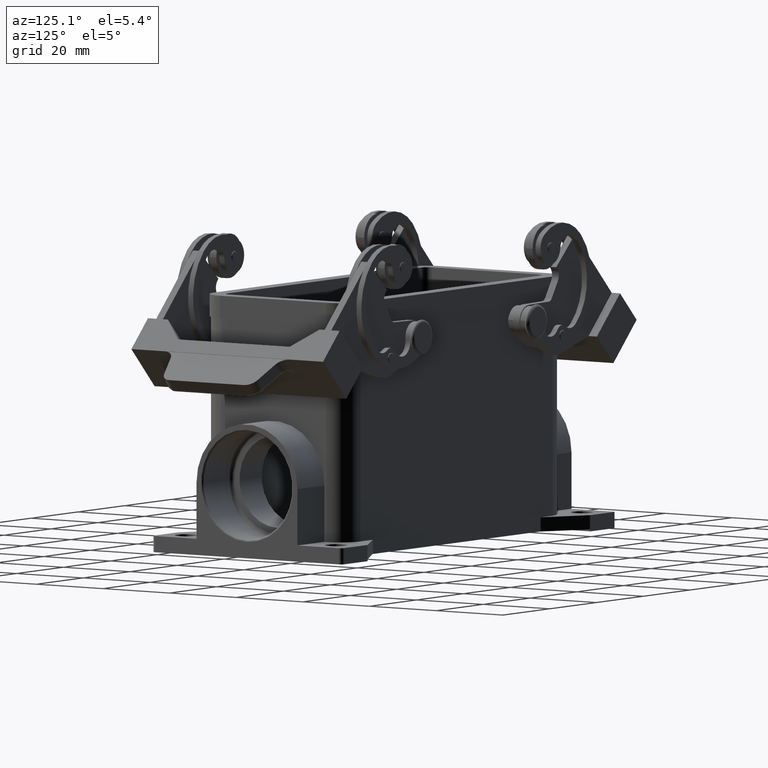
[diagram: clean part render]
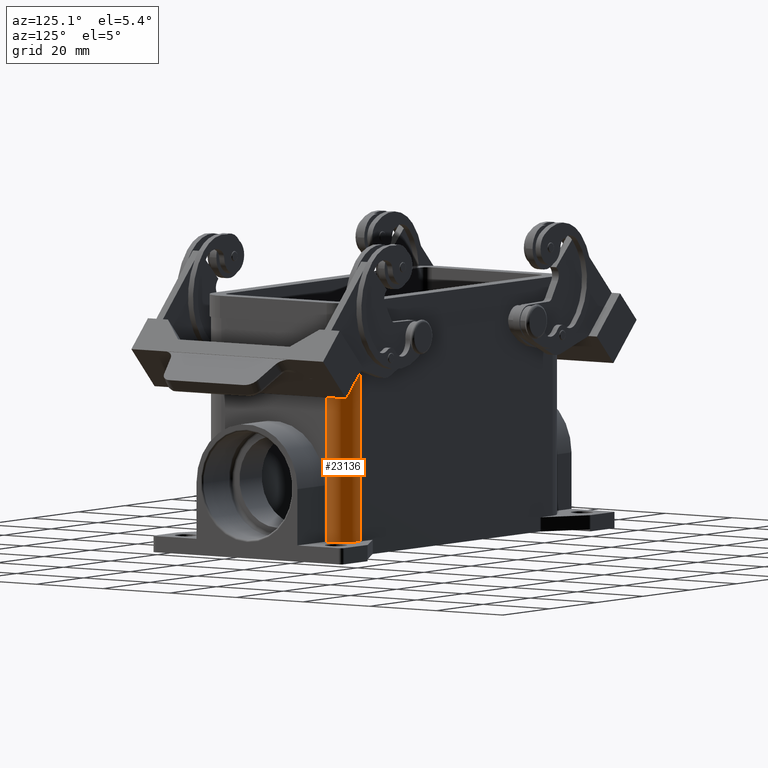
[diagram: same view with one face highlighted and labeled with its STEP entity id]
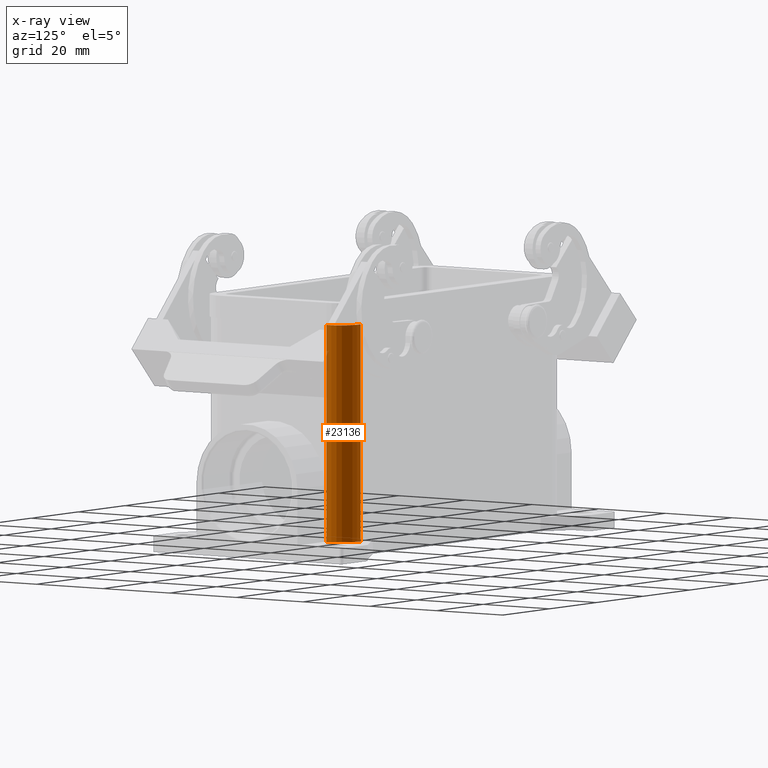
[diagram: x-ray of the same camera — body ghosted, the highlighted face saturated]
A machine part, auxiliary view. The second image highlights one B-rep face of the part: STEP entity #23136.
The next image is the same camera in x-ray: the body ghosted, the highlighted face saturated — about 1% of this face is hidden behind the body in this view.
In plain terms, the highlighted cylindrical surface (edge-blend (fillet) strip) has radius 6 mm, axis along (0, 0, 1).
Its self-contained STEP definition (entity closure, byte-faithful):
#8027=CARTESIAN_POINT('',(41.0,21.750000000000004,23.500000000000000));
#8028=VERTEX_POINT('',#8027);
#8035=CARTESIAN_POINT('',(41.0,21.750000000000007,-30.000000000000004));
#8036=VERTEX_POINT('',#8035);
#8037=CARTESIAN_POINT('',(41.0,21.750000000000004,23.500000000000000));
#8038=DIRECTION('',(0.0,0.0,-1.0));
#8039=VECTOR('',#8038,53.500000000000000);
#8040=LINE('',#8037,#8039);
#8041=EDGE_CURVE('',#8028,#8036,#8040,.T.);
#8874=CARTESIAN_POINT('',(47.000000000000014,15.750000000000027,-30.000000000000004));
#8875=VERTEX_POINT('',#8874);
#8882=CARTESIAN_POINT('',(46.999999999999993,15.750000000000014,23.500000000000000));
#8883=VERTEX_POINT('',#8882);
#8884=CARTESIAN_POINT('',(46.999999999999993,15.750000000000014,23.500000000000000));
#8885=DIRECTION('',(0.0,0.0,-1.0));
#8886=VECTOR('',#8885,53.500000000000000);
#8887=LINE('',#8884,#8886);
#8888=EDGE_CURVE('',#8883,#8875,#8887,.T.);
#9099=CARTESIAN_POINT('',(41.0,15.750000000000000,-30.000000000000004));
#9100=DIRECTION('',(0.0,0.0,1.0));
#9101=DIRECTION('',(-1.0,0.0,0.0));
#9102=AXIS2_PLACEMENT_3D('',#9099,#9100,#9101);
#9103=CIRCLE('',#9102,6.000000000000001);
#9104=EDGE_CURVE('',#8875,#8036,#9103,.T.);
#22575=CARTESIAN_POINT('',(41.0,15.750000000000000,23.500000000000000));
#22576=DIRECTION('',(0.0,0.0,-1.0));
#22577=DIRECTION('',(-1.0,0.0,0.0));
#22578=AXIS2_PLACEMENT_3D('',#22575,#22576,#22577);
#22579=CIRCLE('',#22578,6.000000000000001);
#22580=EDGE_CURVE('',#8028,#8883,#22579,.T.);
#23125=CARTESIAN_POINT('',(41.0,15.750000000000000,1.500000000000000));
#23126=DIRECTION('',(0.0,0.0,1.0));
#23127=DIRECTION('',(-1.0,0.0,0.0));
#23128=AXIS2_PLACEMENT_3D('',#23125,#23126,#23127);
#23129=CYLINDRICAL_SURFACE('',#23128,6.000000000000001);
#23130=ORIENTED_EDGE('',*,*,#9104,.T.);
#23131=ORIENTED_EDGE('',*,*,#8041,.F.);
#23132=ORIENTED_EDGE('',*,*,#22580,.T.);
#23133=ORIENTED_EDGE('',*,*,#8888,.T.);
#23134=EDGE_LOOP('',(#23130,#23131,#23132,#23133));
#23135=FACE_OUTER_BOUND('',#23134,.T.);
#23136=ADVANCED_FACE('',(#23135),#23129,.T.);